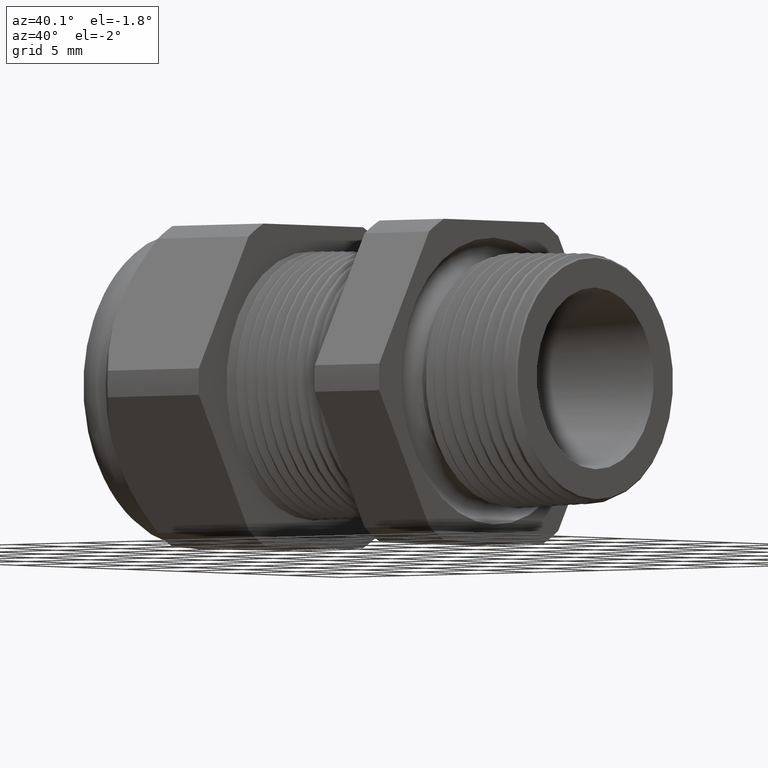
[diagram: clean part render]
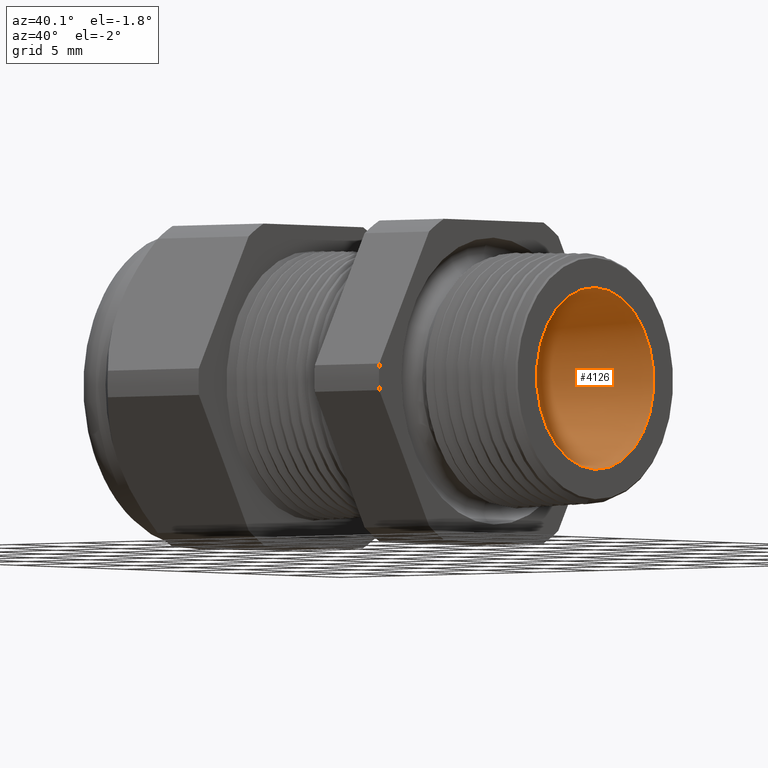
[diagram: same view with one face highlighted and labeled with its STEP entity id]
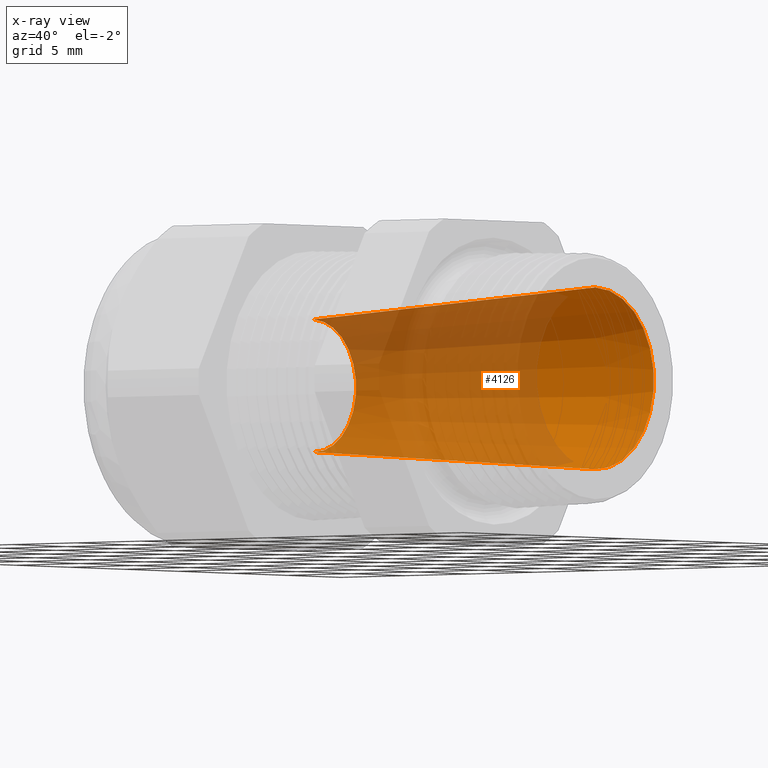
[diagram: x-ray of the same camera — body ghosted, the highlighted face saturated]
A machine part, auxiliary view. The second image highlights one B-rep face of the part: STEP entity #4126.
The next image is the same camera in x-ray: the body ghosted, the highlighted face saturated — about 65% of this face is hidden behind the body in this view.
In plain terms, the highlighted conical surface has half-angle 3.818 deg.
Its self-contained STEP definition (entity closure, byte-faithful):
#452 = CARTESIAN_POINT ( 'NONE',  ( 0.0000000000000000000, 2.601853076012466100E-017, 0.2124574267310360100 ) ) ;
#479 = CARTESIAN_POINT ( 'NONE',  ( 0.0000000000000000000, 0.0000000000000000000, -0.2124574267310360100 ) ) ;
#480 = DIRECTION ( 'NONE',  ( 0.9977800507276000100, 0.0000000000000000000, -0.06659557320143656700 ) ) ;
#481 = VECTOR ( 'NONE', #480, 39.37007874015748100 ) ;
#482 = CARTESIAN_POINT ( 'NONE',  ( -0.8608661417322828200, 0.0000000000000000000, -0.1550000000000000000 ) ) ;
#487 = LINE ( 'NONE', #482, #481 ) ;
#494 = CARTESIAN_POINT ( 'NONE',  ( -0.8608661417322828200, 2.250027807345431700E-017, 0.1550000000000000000 ) ) ;
#495 = CARTESIAN_POINT ( 'NONE',  ( -0.8608661417322828200, 0.0000000000000000000, -0.1550000000000000000 ) ) ;
#533 = DIRECTION ( 'NONE',  ( 0.9977800507276000100, 8.155605555852254600E-018, 0.06659557320143656700 ) ) ;
#534 = VECTOR ( 'NONE', #533, 39.37007874015748100 ) ;
#535 = CARTESIAN_POINT ( 'NONE',  ( -0.8608661417322828200, 1.898202538678397300E-017, 0.1550000000000000000 ) ) ;
#536 = LINE ( 'NONE', #535, #534 ) ;
#1944 = DIRECTION ( 'NONE',  ( 0.0000000000000000000, 0.0000000000000000000, -1.000000000000000000 ) ) ;
#1945 = DIRECTION ( 'NONE',  ( 1.000000000000000000, 0.0000000000000000000, 0.0000000000000000000 ) ) ;
#1946 = AXIS2_PLACEMENT_3D ( 'NONE', #1952, #1945, #1944 ) ;
#1947 = CIRCLE ( 'NONE', #1946, 0.1550000000000000000 ) ;
#1948 = DIRECTION ( 'NONE',  ( 0.0000000000000000000, 0.0000000000000000000, -1.000000000000000000 ) ) ;
#1949 = DIRECTION ( 'NONE',  ( 1.000000000000000000, 0.0000000000000000000, 0.0000000000000000000 ) ) ;
#1950 = AXIS2_PLACEMENT_3D ( 'NONE', #1953, #1949, #1948 ) ;
#1951 = CONICAL_SURFACE ( 'NONE', #1950, 0.1550000000000000000, 0.06664489660048493500 ) ;
#1952 = CARTESIAN_POINT ( 'NONE',  ( -0.8608661417322828200, 0.0000000000000000000, 0.0000000000000000000 ) ) ;
#1953 = CARTESIAN_POINT ( 'NONE',  ( -0.8608661417322828200, 0.0000000000000000000, 0.0000000000000000000 ) ) ;
#1954 = DIRECTION ( 'NONE',  ( 0.0000000000000000000, 0.0000000000000000000, -1.000000000000000000 ) ) ;
#1955 = DIRECTION ( 'NONE',  ( 1.000000000000000000, 0.0000000000000000000, 0.0000000000000000000 ) ) ;
#1956 = CARTESIAN_POINT ( 'NONE',  ( 0.0000000000000000000, 0.0000000000000000000, 0.0000000000000000000 ) ) ;
#1957 = AXIS2_PLACEMENT_3D ( 'NONE', #1956, #1955, #1954 ) ;
#1965 = CIRCLE ( 'NONE', #1957, 0.2124574267310360100 ) ;
#1966 = FACE_OUTER_BOUND ( 'NONE', #4127, .T. ) ;
#3373 = VERTEX_POINT ( 'NONE', #452 ) ;
#3382 = VERTEX_POINT ( 'NONE', #495 ) ;
#3383 = VERTEX_POINT ( 'NONE', #494 ) ;
#3393 = EDGE_CURVE ( 'NONE', #3382, #3395, #487, .T. ) ;
#3395 = VERTEX_POINT ( 'NONE', #479 ) ;
#3397 = EDGE_CURVE ( 'NONE', #3383, #3373, #536, .T. ) ;
#4124 = EDGE_CURVE ( 'NONE', #3395, #3373, #1965, .T. ) ;
#4126 = ADVANCED_FACE ( 'NONE', ( #1966 ), #1951, .F. ) ;
#4127 = EDGE_LOOP ( 'NONE', ( #4128, #4129, #4131, #4132 ) ) ;
#4128 = ORIENTED_EDGE ( 'NONE', *, *, #3397, .F. ) ;
#4129 = ORIENTED_EDGE ( 'NONE', *, *, #4130, .F. ) ;
#4130 = EDGE_CURVE ( 'NONE', #3382, #3383, #1947, .T. ) ;
#4131 = ORIENTED_EDGE ( 'NONE', *, *, #3393, .T. ) ;
#4132 = ORIENTED_EDGE ( 'NONE', *, *, #4124, .T. ) ;